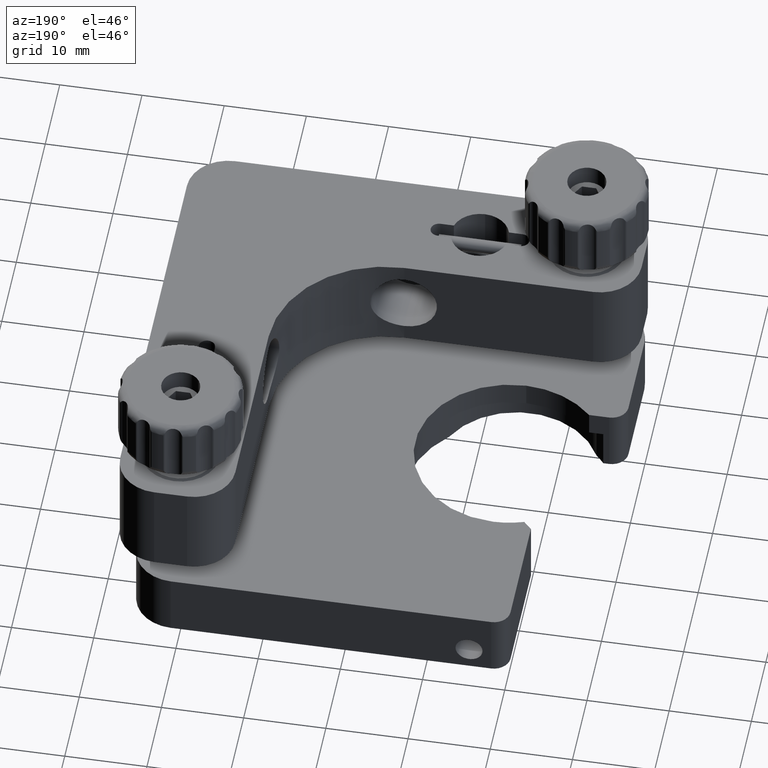
[diagram: clean part render]
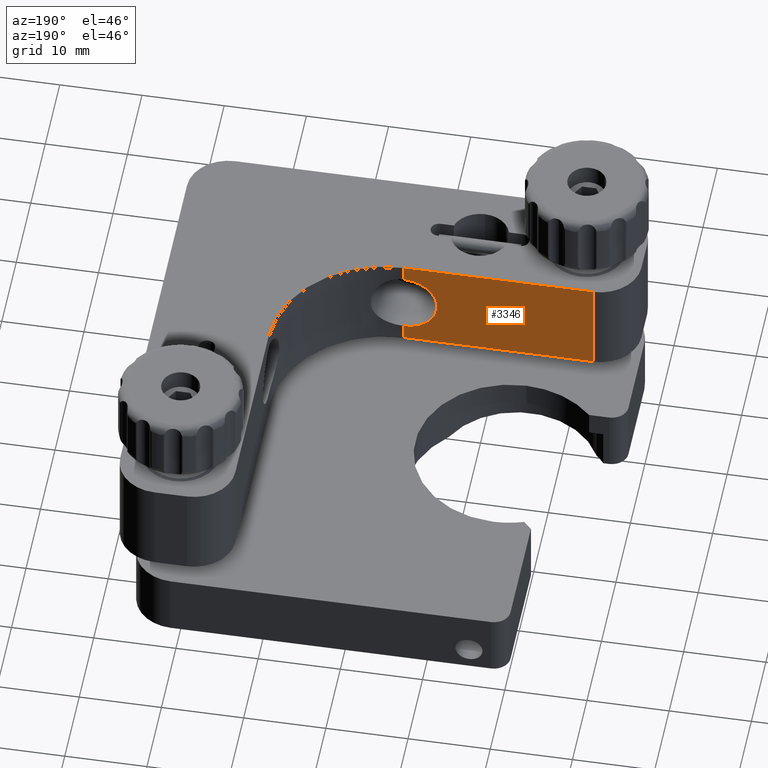
[diagram: same view with one face highlighted and labeled with its STEP entity id]
A machine part, auxiliary view. The second image highlights one B-rep face of the part: STEP entity #3346.
In plain terms, the highlighted planar face has unit normal (0, 1, 0).
Its self-contained STEP definition (entity closure, byte-faithful):
#319 = DIRECTION ( 'NONE',  ( 1.000000000000000000, -2.733061550323951200E-016, 0.0000000000000000000 ) ) ;
#333 = CARTESIAN_POINT ( 'NONE',  ( -22.99999999999996400, -13.99999999999999300, -6.000000000000000000 ) ) ;
#915 = CARTESIAN_POINT ( 'NONE',  ( -22.99999999999996400, -13.99999999999999300, 6.000000000000000000 ) ) ;
#1237 = CARTESIAN_POINT ( 'NONE',  ( -3.616228380844064100E-015, -14.00000000000000000, -3.999999999999997300 ) ) ;
#1804 = DIRECTION ( 'NONE',  ( 1.000000000000000000, -2.733061550323951200E-016, 0.0000000000000000000 ) ) ;
#2192 = ORIENTED_EDGE ( 'NONE', *, *, #11334, .T. ) ;
#3156 = VECTOR ( 'NONE', #15421, 1000.000000000000000 ) ;
#3346 = ADVANCED_FACE ( 'NONE', ( #5730 ), #10144, .T. ) ;
#3815 = LINE ( 'NONE', #5617, #8751 ) ;
#4102 = EDGE_CURVE ( 'NONE', #11653, #17746, #15821, .T. ) ;
#4227 = AXIS2_PLACEMENT_3D ( 'NONE', #19647, #11668, #5519 ) ;
#4950 = CARTESIAN_POINT ( 'NONE',  ( -22.99999999999996400, -13.99999999999999300, -6.000000000000000000 ) ) ;
#5519 = DIRECTION ( 'NONE',  ( 1.000000000000000000, -4.336808689942020700E-016, 0.0000000000000000000 ) ) ;
#5617 = CARTESIAN_POINT ( 'NONE',  ( -3.616228380844064100E-015, -14.00000000000000000, 6.000000000000000000 ) ) ;
#5730 = FACE_OUTER_BOUND ( 'NONE', #10909, .T. ) ;
#6102 = ORIENTED_EDGE ( 'NONE', *, *, #13768, .F. ) ;
#6698 = ORIENTED_EDGE ( 'NONE', *, *, #10617, .F. ) ;
#6842 = VECTOR ( 'NONE', #319, 1000.000000000000000 ) ;
#7156 = ORIENTED_EDGE ( 'NONE', *, *, #18871, .T. ) ;
#7381 = DIRECTION ( 'NONE',  ( 2.733061550323951200E-016, 1.000000000000000000, 0.0000000000000000000 ) ) ;
#7541 = CARTESIAN_POINT ( 'NONE',  ( -3.616228380844064100E-015, -14.00000000000000000, 6.000000000000000000 ) ) ;
#8751 = VECTOR ( 'NONE', #18104, 1000.000000000000000 ) ;
#9210 = CARTESIAN_POINT ( 'NONE',  ( -22.99999999999996400, -13.99999999999999300, 6.000000000000000000 ) ) ;
#9275 = DIRECTION ( 'NONE',  ( 0.0000000000000000000, 0.0000000000000000000, -1.000000000000000000 ) ) ;
#9322 = LINE ( 'NONE', #7541, #3156 ) ;
#9411 = VECTOR ( 'NONE', #9275, 1000.000000000000000 ) ;
#9526 = LINE ( 'NONE', #4950, #10769 ) ;
#10144 = PLANE ( 'NONE',  #19856 ) ;
#10617 = EDGE_CURVE ( 'NONE', #17746, #20280, #9526, .T. ) ;
#10769 = VECTOR ( 'NONE', #1804, 1000.000000000000000 ) ;
#10909 = EDGE_LOOP ( 'NONE', ( #6102, #2192, #6698, #11351, #7156, #12376 ) ) ;
#11034 = LINE ( 'NONE', #14304, #6842 ) ;
#11334 = EDGE_CURVE ( 'NONE', #16281, #20280, #3815, .T. ) ;
#11351 = ORIENTED_EDGE ( 'NONE', *, *, #4102, .F. ) ;
#11405 = CARTESIAN_POINT ( 'NONE',  ( -22.99999999999996400, -13.99999999999999300, 6.000000000000000000 ) ) ;
#11653 = VERTEX_POINT ( 'NONE', #11405 ) ;
#11668 = DIRECTION ( 'NONE',  ( 2.733061550323951200E-016, 1.000000000000000000, -0.0000000000000000000 ) ) ;
#11909 = VERTEX_POINT ( 'NONE', #12864 ) ;
#12373 = VERTEX_POINT ( 'NONE', #18946 ) ;
#12376 = ORIENTED_EDGE ( 'NONE', *, *, #18969, .T. ) ;
#12664 = CARTESIAN_POINT ( 'NONE',  ( -3.616228380844064100E-015, -14.00000000000000000, -6.000000000000000000 ) ) ;
#12864 = CARTESIAN_POINT ( 'NONE',  ( -3.616228380844064100E-015, -14.00000000000000000, 6.000000000000000000 ) ) ;
#13768 = EDGE_CURVE ( 'NONE', #16281, #12373, #19245, .T. ) ;
#13792 = DIRECTION ( 'NONE',  ( 1.000000000000000000, -2.733061550323951200E-016, 0.0000000000000000000 ) ) ;
#14304 = CARTESIAN_POINT ( 'NONE',  ( -22.99999999999996400, -13.99999999999999300, 6.000000000000000000 ) ) ;
#15421 = DIRECTION ( 'NONE',  ( 0.0000000000000000000, 0.0000000000000000000, -1.000000000000000000 ) ) ;
#15821 = LINE ( 'NONE', #9210, #9411 ) ;
#16281 = VERTEX_POINT ( 'NONE', #1237 ) ;
#17746 = VERTEX_POINT ( 'NONE', #333 ) ;
#18104 = DIRECTION ( 'NONE',  ( 0.0000000000000000000, 0.0000000000000000000, -1.000000000000000000 ) ) ;
#18871 = EDGE_CURVE ( 'NONE', #11653, #11909, #11034, .T. ) ;
#18946 = CARTESIAN_POINT ( 'NONE',  ( -3.616228380844064100E-015, -14.00000000000000000, 3.999999999999997300 ) ) ;
#18969 = EDGE_CURVE ( 'NONE', #11909, #12373, #9322, .T. ) ;
#19245 = CIRCLE ( 'NONE', #4227, 3.999999999999997300 ) ;
#19647 = CARTESIAN_POINT ( 'NONE',  ( -1.714448895351328200E-015, -14.00000000000000000, 0.0000000000000000000 ) ) ;
#19856 = AXIS2_PLACEMENT_3D ( 'NONE', #915, #7381, #13792 ) ;
#20280 = VERTEX_POINT ( 'NONE', #12664 ) ;